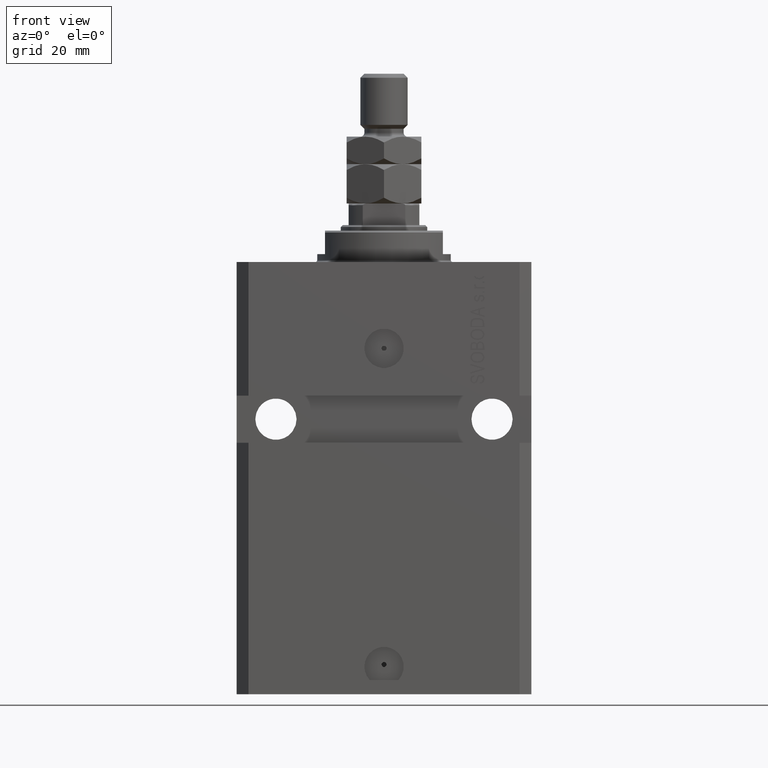
[diagram: clean part render]
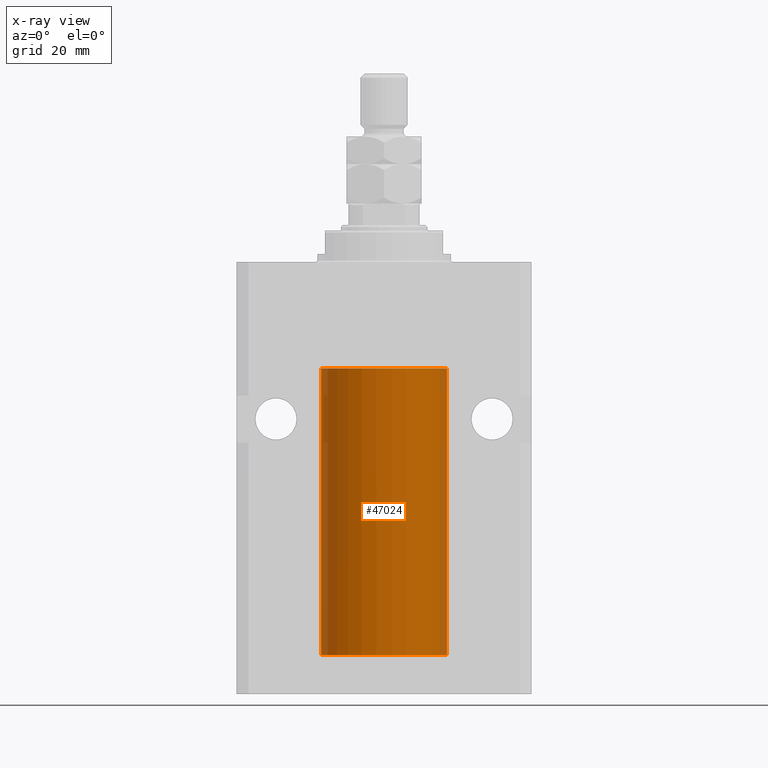
[diagram: x-ray — body ghosted, one internal face saturated and labeled with its STEP entity id]
A machine part, front view, then the same camera in x-ray: the body is ghosted and one INTERNAL B-rep face — a face not visible from any outside direction — is saturated and labeled: STEP entity #47024.
In plain terms, the highlighted cylindrical surface (partial cylindrical patch) has radius 16 mm, axis along (0, 0, 1).
Its self-contained STEP definition (entity closure, byte-faithful):
#59 = VECTOR ( 'NONE', #17642, 1000.000000000000000 ) ;
#80 = VERTEX_POINT ( 'NONE', #31964 ) ;
#1706 = ORIENTED_EDGE ( 'NONE', *, *, #14600, .T. ) ;
#1970 = CARTESIAN_POINT ( 'NONE',  ( -16.00000000000000000, 1.959434878635765131E-15, -100.0999999999999943 ) ) ;
#3080 = CARTESIAN_POINT ( 'NONE',  ( 0.000000000000000000, 0.000000000000000000, -100.0999999999999943 ) ) ;
#4188 = VERTEX_POINT ( 'NONE', #20078 ) ;
#5062 = CARTESIAN_POINT ( 'NONE',  ( -16.00000000000000000, -0.1651602165840288794, -97.37500000000001421 ) ) ;
#5767 = DIRECTION ( 'NONE',  ( 1.000000000000000000, 0.000000000000000000, 0.000000000000000000 ) ) ;
#6400 = EDGE_CURVE ( 'NONE', #26639, #32911, #35480, .T. ) ;
#6467 = CARTESIAN_POINT ( 'NONE',  ( 16.00000000000000000, 0.000000000000000000, -100.0999999999999943 ) ) ;
#8295 = ORIENTED_EDGE ( 'NONE', *, *, #44267, .F. ) ;
#8346 = DIRECTION ( 'NONE',  ( -0.000000000000000000, -0.000000000000000000, 1.000000000000000000 ) ) ;
#8628 = EDGE_CURVE ( 'NONE', #21529, #4188, #39889, .T. ) ;
#9660 = ORIENTED_EDGE ( 'NONE', *, *, #37693, .F. ) ;
#10456 = EDGE_LOOP ( 'NONE', ( #8295, #30718, #40618, #14620, #1706, #9660 ) ) ;
#11065 = AXIS2_PLACEMENT_3D ( 'NONE', #37662, #30566, #37895 ) ;
#11707 = B_SPLINE_CURVE_WITH_KNOTS ( 'NONE', 3,
 ( #41758, #45450, #27792, #38087, #39038, #31471, #46164, #19997, #5062, #34900 ),
 .UNSPECIFIED., .F., .F.,
 ( 4, 2, 2, 2, 4 ),
 ( 0.001954221322144760863, 0.002442665739568255709, 0.002931110156991750121, 0.003419554574415244966, 0.003907998991838739812 ),
 .UNSPECIFIED. ) ;
#11711 = VECTOR ( 'NONE', #16896, 1000.000000000000000 ) ;
#13359 = DIRECTION ( 'NONE',  ( 0.000000000000000000, 0.000000000000000000, 1.000000000000000000 ) ) ;
#14600 = EDGE_CURVE ( 'NONE', #4188, #16178, #32112, .T. ) ;
#14620 = ORIENTED_EDGE ( 'NONE', *, *, #8628, .T. ) ;
#14945 = CARTESIAN_POINT ( 'NONE',  ( -16.00000000000000000, -1.303459030566954747E-14, -97.37500000000000000 ) ) ;
#15456 = CARTESIAN_POINT ( 'NONE',  ( 0.000000000000000000, 0.000000000000000000, -100.0999999999999943 ) ) ;
#15479 = CARTESIAN_POINT ( 'NONE',  ( -16.00000000000000000, 1.959434878635765131E-15, -100.0999999999999943 ) ) ;
#16178 = VERTEX_POINT ( 'NONE', #25196 ) ;
#16896 = DIRECTION ( 'NONE',  ( -0.000000000000000000, -0.000000000000000000, 1.000000000000000000 ) ) ;
#17642 = DIRECTION ( 'NONE',  ( -0.000000000000000000, -0.000000000000000000, 1.000000000000000000 ) ) ;
#19840 = CYLINDRICAL_SURFACE ( 'NONE', #38022, 16.00000000000000000 ) ;
#19997 = CARTESIAN_POINT ( 'NONE',  ( -15.99707459521409625, -0.3269651631532106140, -97.44291848928558863 ) ) ;
#20068 = EDGE_CURVE ( 'NONE', #32911, #21529, #11707, .T. ) ;
#20078 = CARTESIAN_POINT ( 'NONE',  ( -16.00000000000000000, 1.959434878635765131E-15, -27.10000000000000142 ) ) ;
#21529 = VERTEX_POINT ( 'NONE', #14945 ) ;
#24613 = CIRCLE ( 'NONE', #37886, 16.00000000000000000 ) ;
#25196 = CARTESIAN_POINT ( 'NONE',  ( 16.00000000000000000, 0.000000000000000000, -27.10000000000000142 ) ) ;
#26639 = VERTEX_POINT ( 'NONE', #15479 ) ;
#26933 = FACE_OUTER_BOUND ( 'NONE', #10456, .T. ) ;
#27792 = CARTESIAN_POINT ( 'NONE',  ( -15.99708815688950381, -0.3263115027449080552, -98.55740969198227219 ) ) ;
#28731 = DIRECTION ( 'NONE',  ( -0.000000000000000000, -0.000000000000000000, 1.000000000000000000 ) ) ;
#30566 = DIRECTION ( 'NONE',  ( 0.000000000000000000, 0.000000000000000000, 1.000000000000000000 ) ) ;
#30718 = ORIENTED_EDGE ( 'NONE', *, *, #6400, .T. ) ;
#31471 = CARTESIAN_POINT ( 'NONE',  ( -15.98778295664474491, -0.6251369050462269872, -97.83564325457868449 ) ) ;
#31964 = CARTESIAN_POINT ( 'NONE',  ( 16.00000000000000000, 0.000000000000000000, -100.0999999999999943 ) ) ;
#32112 = CIRCLE ( 'NONE', #11065, 16.00000000000000000 ) ;
#32911 = VERTEX_POINT ( 'NONE', #35478 ) ;
#34900 = CARTESIAN_POINT ( 'NONE',  ( -16.00000000000000000, -1.303459030566954747E-14, -97.37500000000000000 ) ) ;
#35478 = CARTESIAN_POINT ( 'NONE',  ( -16.00000000000013145, 3.685127046438747128E-13, -98.62500000000343903 ) ) ;
#35480 = LINE ( 'NONE', #1970, #11711 ) ;
#37662 = CARTESIAN_POINT ( 'NONE',  ( 0.000000000000000000, 0.000000000000000000, -27.10000000000000142 ) ) ;
#37693 = EDGE_CURVE ( 'NONE', #80, #16178, #43157, .T. ) ;
#37886 = AXIS2_PLACEMENT_3D ( 'NONE', #3080, #13359, #5767 ) ;
#37895 = DIRECTION ( 'NONE',  ( 1.000000000000000000, 0.000000000000000000, 0.000000000000000000 ) ) ;
#38022 = AXIS2_PLACEMENT_3D ( 'NONE', #15456, #8346, #42093 ) ;
#38087 = CARTESIAN_POINT ( 'NONE',  ( -15.99071965633095793, -0.5569502390237154321, -98.32709508218682970 ) ) ;
#39038 = CARTESIAN_POINT ( 'NONE',  ( -15.98779367741636648, -0.6248626626677354912, -98.16539631985041581 ) ) ;
#39889 = LINE ( 'NONE', #47498, #59 ) ;
#40618 = ORIENTED_EDGE ( 'NONE', *, *, #20068, .T. ) ;
#41758 = CARTESIAN_POINT ( 'NONE',  ( -16.00000000000013145, 3.685127046438747128E-13, -98.62500000000343903 ) ) ;
#42093 = DIRECTION ( 'NONE',  ( 1.000000000000000000, 0.000000000000000000, 0.000000000000000000 ) ) ;
#43157 = LINE ( 'NONE', #6467, #44385 ) ;
#44267 = EDGE_CURVE ( 'NONE', #26639, #80, #24613, .T. ) ;
#44385 = VECTOR ( 'NONE', #28731, 1000.000000000000000 ) ;
#45450 = CARTESIAN_POINT ( 'NONE',  ( -16.00000000000000711, -0.1631344205875864539, -98.62500000000012790 ) ) ;
#46164 = CARTESIAN_POINT ( 'NONE',  ( -15.99069874693027948, -0.5575440858643423425, -97.67382425011452085 ) ) ;
#47024 = ADVANCED_FACE ( 'NONE', ( #26933 ), #19840, .F. ) ;
#47498 = CARTESIAN_POINT ( 'NONE',  ( -16.00000000000000000, 1.959434878635765131E-15, -100.0999999999999943 ) ) ;